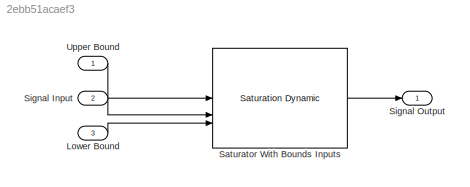
MODEL slx_2ebb51acaef3
KIND model
CONFIG AbsTol = auto
CONFIG EnableMultiTasking = off
CONFIG FixedStep = 0.05
CONFIG MaxStep = auto
CONFIG MinStep = auto
CONFIG RelTol = 1e-3
CONFIG SampleTimeConstraint = Unconstrained
CONFIG SolverName = FixedStepDiscrete
CONFIG StartTime = 0.0
CONFIG StopTime = 10.0
BLOCK [Inport] Lower Bound
  Port = 3
BLOCK [Reference] Saturator With Bounds Inputs  REF=simulink/Discontinuities/Saturation
Dynamic
  SourceBlock = simulink/Discontinuities/Saturation\nDynamic
  SourceType = Saturation Dynamic
BLOCK [Inport] Signal Input
  Port = 2
BLOCK [Outport] Signal Output
BLOCK [Inport] Upper Bound
LINE Lower Bound:1 -> Saturator With Bounds Inputs:3
LINE Saturator With Bounds Inputs:1 -> Signal Output:1
LINE Signal Input:1 -> Saturator With Bounds Inputs:2
LINE Upper Bound:1 -> Saturator With Bounds Inputs:1
